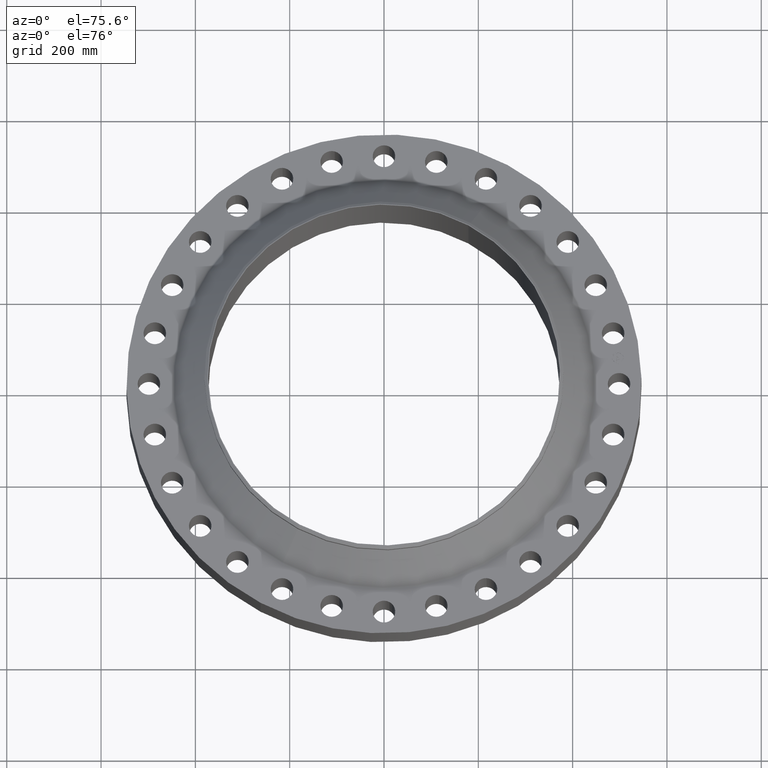
[diagram: clean part render]
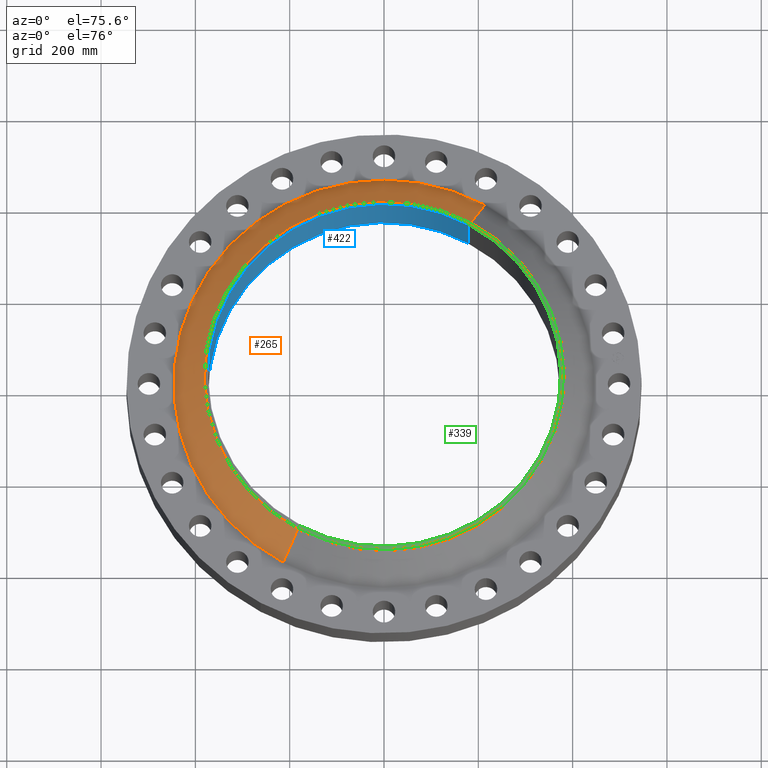
[diagram: same view with three faces highlighted in distinct colors, each labeled with its STEP entity id]
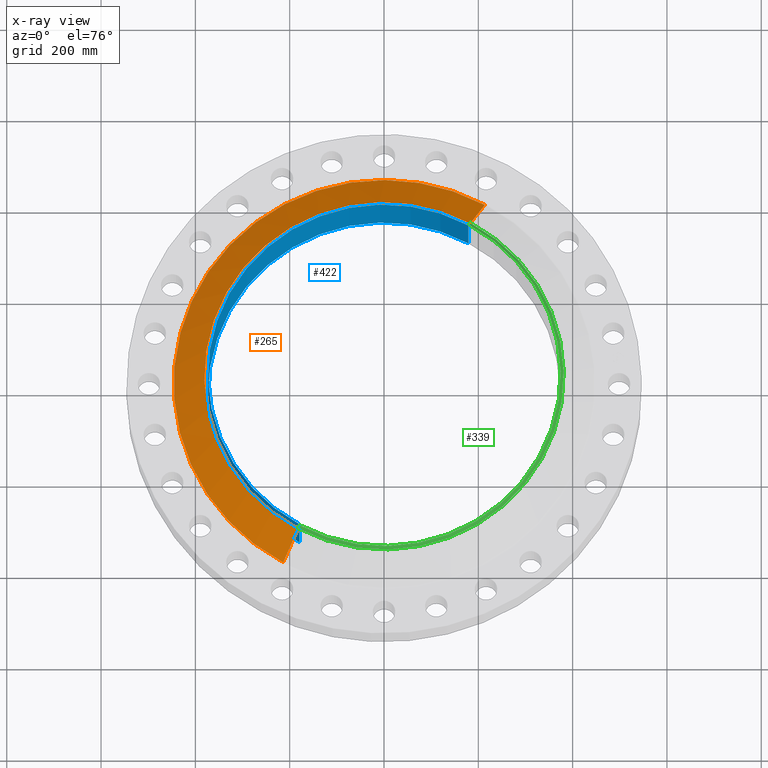
[diagram: x-ray of the same camera — body ghosted, the three highlighted faces saturated]
A machine part, auxiliary view with three faces highlighted in distinct colors.
The next image is the same camera in x-ray (body ghosted, the three faces saturated) — at least one of them is partly hidden behind the body in this view.
Their STEP definitions:

[orange] entity #265 — the highlighted conical surface has half-angle 45.581 deg.
#184=CARTESIAN_POINT('Vertex',(213.73904843,391.246703802,78.0146028909)) ;
#191=CARTESIAN_POINT('Vertex',(-213.73904843,-391.246703802,78.0146028909)) ;
#211=CARTESIAN_POINT('Axis2P3D Location',(0.,0.,78.0146028909)) ;
#223=CARTESIAN_POINT('Axis2P3D Location',(0.,0.,141.53721868)) ;
#228=CARTESIAN_POINT('Line Origine',(198.20008932,362.802829942,109.775910785)) ;
#232=CARTESIAN_POINT('Vertex',(182.661130209,334.358956082,141.53721868)) ;
#239=CARTESIAN_POINT('Vertex',(-182.661130209,-334.358956082,141.53721868)) ;
#242=CARTESIAN_POINT('Line Origine',(-198.20008932,-362.802829942,109.775910785)) ;
#254=CARTESIAN_POINT('Axis2P3D Location',(0.,0.,141.53721868)) ;
#212=DIRECTION('Axis2P3D Direction',(0.,0.,-1.)) ;
#224=DIRECTION('Axis2P3D Direction',(0.,0.,-1.)) ;
#225=DIRECTION('Axis2P3D XDirection',(0.479425538604,0.87758256189,0.)) ;
#229=DIRECTION('Vector Direction',(0.342422866449,0.626800852669,-0.699905187598)) ;
#243=DIRECTION('Vector Direction',(-0.342422866449,-0.626800852669,-0.699905187598)) ;
#255=DIRECTION('Axis2P3D Direction',(0.,0.,-1.)) ;
#213=AXIS2_PLACEMENT_3D('Circle Axis2P3D',#211,#212,$) ;
#226=AXIS2_PLACEMENT_3D('Cone Axis2P3D',#223,#224,#225) ;
#256=AXIS2_PLACEMENT_3D('Circle Axis2P3D',#254,#255,$) ;
#260=ORIENTED_EDGE('',*,*,#215,.F.) ;
#261=ORIENTED_EDGE('',*,*,#246,.T.) ;
#262=ORIENTED_EDGE('',*,*,#258,.T.) ;
#263=ORIENTED_EDGE('',*,*,#234,.F.) ;
#230=VECTOR('Line Direction',#229,1.) ;
#244=VECTOR('Line Direction',#243,1.) ;
#265=ADVANCED_FACE('PartBody',(#264),#227,.T.) ;
#214=CIRCLE('generated circle',#213,445.823243068) ;
#257=CIRCLE('generated circle',#256,381.000000002) ;
#227=CONICAL_SURFACE('Cone',#226,381.000000002,0.795531585465) ;
#215=EDGE_CURVE('',#192,#185,#214,.T.) ;
#234=EDGE_CURVE('',#185,#233,#231,.F.) ;
#246=EDGE_CURVE('',#192,#240,#245,.F.) ;
#258=EDGE_CURVE('',#240,#233,#257,.T.) ;
#259=EDGE_LOOP('',(#260,#261,#262,#263)) ;
#264=FACE_OUTER_BOUND('',#259,.T.) ;
#231=LINE('Line',#228,#230) ;
#245=LINE('Line',#242,#244) ;
#185=VERTEX_POINT('',#184) ;
#192=VERTEX_POINT('',#191) ;
#233=VERTEX_POINT('',#232) ;
#240=VERTEX_POINT('',#239) ;

[blue] entity #422 — the highlighted cylindrical surface (partial cylindrical patch) has radius 373.075 mm, axis along (0, 0, -1).
#361=CARTESIAN_POINT('Axis2P3D Location',(-8.52651282912E-014,-2.84217094304E-014,152.400000001)) ;
#365=CARTESIAN_POINT('Vertex',(-178.861778701,-327.404289795,152.400000001)) ;
#367=CARTESIAN_POINT('Vertex',(178.861778701,327.404289795,152.400000001)) ;
#380=CARTESIAN_POINT('Axis2P3D Location',(0.,0.,76.6762500003)) ;
#385=CARTESIAN_POINT('Line Origine',(178.861778701,327.404289795,76.6762500003)) ;
#389=CARTESIAN_POINT('Vertex',(178.861778701,327.404289795,-1.58750000001)) ;
#396=CARTESIAN_POINT('Vertex',(-178.861778701,-327.404289795,-1.58750000001)) ;
#399=CARTESIAN_POINT('Line Origine',(-178.861778701,-327.404289795,76.6762500003)) ;
#411=CARTESIAN_POINT('Axis2P3D Location',(0.,0.,-1.58750000001)) ;
#362=DIRECTION('Axis2P3D Direction',(0.,-0.,-1.)) ;
#381=DIRECTION('Axis2P3D Direction',(0.,0.,-1.)) ;
#382=DIRECTION('Axis2P3D XDirection',(0.479425538604,0.87758256189,0.)) ;
#386=DIRECTION('Vector Direction',(0.,0.,-1.)) ;
#400=DIRECTION('Vector Direction',(0.,0.,-1.)) ;
#412=DIRECTION('Axis2P3D Direction',(0.,0.,-1.)) ;
#363=AXIS2_PLACEMENT_3D('Circle Axis2P3D',#361,#362,$) ;
#383=AXIS2_PLACEMENT_3D('Cylinder Axis2P3D',#380,#381,#382) ;
#413=AXIS2_PLACEMENT_3D('Circle Axis2P3D',#411,#412,$) ;
#417=ORIENTED_EDGE('',*,*,#403,.T.) ;
#418=ORIENTED_EDGE('',*,*,#415,.T.) ;
#419=ORIENTED_EDGE('',*,*,#391,.F.) ;
#420=ORIENTED_EDGE('',*,*,#369,.F.) ;
#387=VECTOR('Line Direction',#386,1.) ;
#401=VECTOR('Line Direction',#400,1.) ;
#422=ADVANCED_FACE('PartBody',(#421),#384,.F.) ;
#364=CIRCLE('generated circle',#363,373.075200001) ;
#414=CIRCLE('generated circle',#413,373.075200001) ;
#384=CYLINDRICAL_SURFACE('generated cylinder',#383,373.075200001) ;
#369=EDGE_CURVE('',#366,#368,#364,.T.) ;
#391=EDGE_CURVE('',#368,#390,#388,.T.) ;
#403=EDGE_CURVE('',#366,#397,#402,.T.) ;
#415=EDGE_CURVE('',#397,#390,#414,.T.) ;
#416=EDGE_LOOP('',(#417,#418,#419,#420)) ;
#421=FACE_OUTER_BOUND('',#416,.T.) ;
#388=LINE('Line',#385,#387) ;
#402=LINE('Line',#399,#401) ;
#366=VERTEX_POINT('',#365) ;
#368=VERTEX_POINT('',#367) ;
#390=VERTEX_POINT('',#389) ;
#397=VERTEX_POINT('',#396) ;

[green] entity #339 — the highlighted conical surface has half-angle 52.5 deg.
#275=CARTESIAN_POINT('Vertex',(-182.661130209,-334.358956082,147.53721868)) ;
#282=CARTESIAN_POINT('Vertex',(182.661130209,334.358956082,147.53721868)) ;
#285=CARTESIAN_POINT('Axis2P3D Location',(0.,0.,147.53721868)) ;
#309=CARTESIAN_POINT('Axis2P3D Location',(0.,0.,152.400000001)) ;
#314=CARTESIAN_POINT('Line Origine',(183.661099184,336.189387013,145.936754958)) ;
#318=CARTESIAN_POINT('Vertex',(179.622866743,328.797452112,152.400000001)) ;
#321=CARTESIAN_POINT('Axis2P3D Location',(0.,0.,152.400000001)) ;
#325=CARTESIAN_POINT('Vertex',(-179.622866743,-328.797452112,152.400000001)) ;
#328=CARTESIAN_POINT('Line Origine',(-183.661099184,-336.189387013,145.936754958)) ;
#286=DIRECTION('Axis2P3D Direction',(0.,0.,-1.)) ;
#310=DIRECTION('Axis2P3D Direction',(-0.,-0.,-1.)) ;
#311=DIRECTION('Axis2P3D XDirection',(0.479425538604,0.87758256189,0.)) ;
#315=DIRECTION('Vector Direction',(0.380353852473,0.696233056857,-0.608761429009)) ;
#322=DIRECTION('Axis2P3D Direction',(0.,-0.,-1.)) ;
#329=DIRECTION('Vector Direction',(-0.380353852473,-0.696233056857,-0.608761429009)) ;
#287=AXIS2_PLACEMENT_3D('Circle Axis2P3D',#285,#286,$) ;
#312=AXIS2_PLACEMENT_3D('Cone Axis2P3D',#309,#310,#311) ;
#323=AXIS2_PLACEMENT_3D('Circle Axis2P3D',#321,#322,$) ;
#334=ORIENTED_EDGE('',*,*,#320,.F.) ;
#335=ORIENTED_EDGE('',*,*,#327,.T.) ;
#336=ORIENTED_EDGE('',*,*,#332,.T.) ;
#337=ORIENTED_EDGE('',*,*,#289,.F.) ;
#316=VECTOR('Line Direction',#315,1.) ;
#330=VECTOR('Line Direction',#329,1.) ;
#339=ADVANCED_FACE('PartBody',(#338),#313,.T.) ;
#288=CIRCLE('generated circle',#287,381.000000002) ;
#324=CIRCLE('generated circle',#323,374.662700001) ;
#313=CONICAL_SURFACE('Cone',#312,374.662700001,0.916297857297) ;
#289=EDGE_CURVE('',#283,#276,#288,.T.) ;
#320=EDGE_CURVE('',#319,#283,#317,.T.) ;
#327=EDGE_CURVE('',#319,#326,#324,.T.) ;
#332=EDGE_CURVE('',#326,#276,#331,.T.) ;
#333=EDGE_LOOP('',(#334,#335,#336,#337)) ;
#338=FACE_OUTER_BOUND('',#333,.T.) ;
#317=LINE('Line',#314,#316) ;
#331=LINE('Line',#328,#330) ;
#276=VERTEX_POINT('',#275) ;
#283=VERTEX_POINT('',#282) ;
#319=VERTEX_POINT('',#318) ;
#326=VERTEX_POINT('',#325) ;